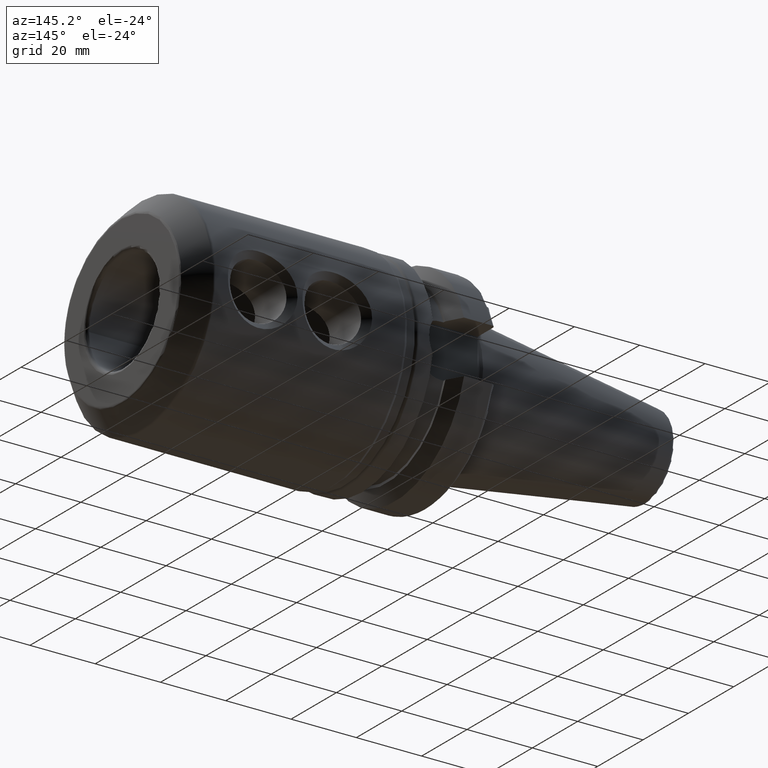
[diagram: clean part render]
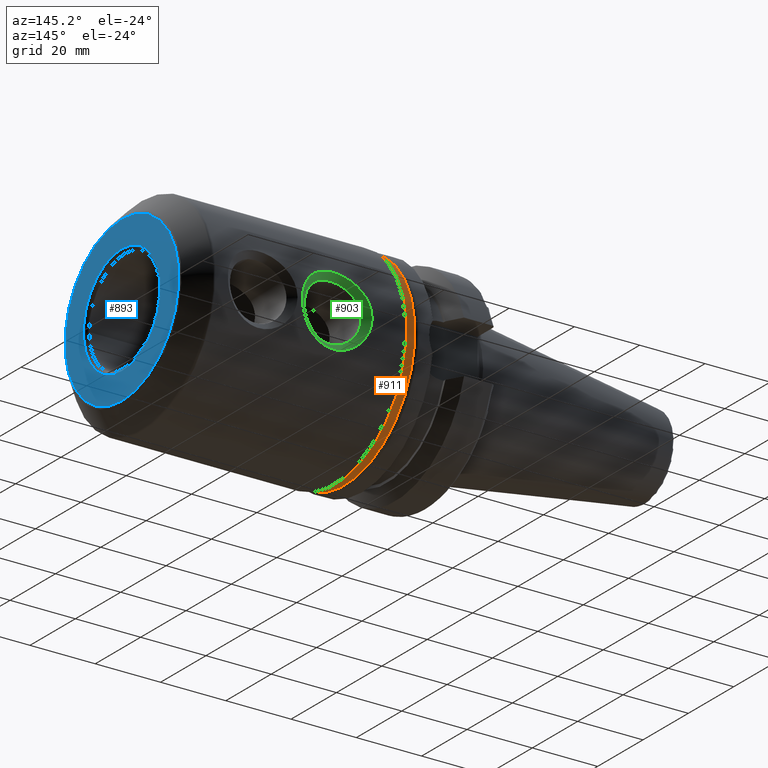
[diagram: same view with three faces highlighted in distinct colors, each labeled with its STEP entity id]
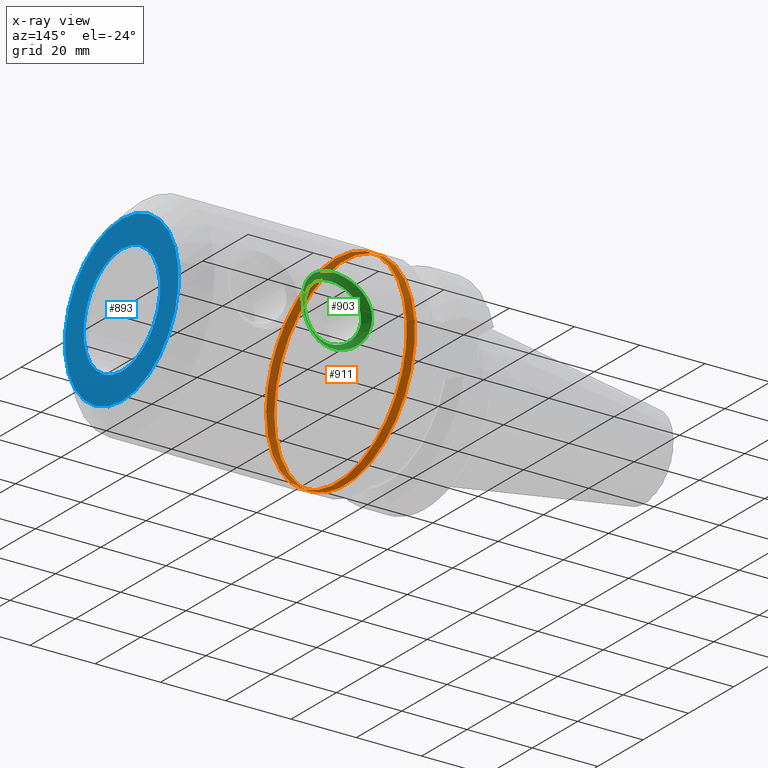
[diagram: x-ray of the same camera — body ghosted, the three highlighted faces saturated]
A machine part, auxiliary view with three faces highlighted in distinct colors.
The next image is the same camera in x-ray (body ghosted, the three faces saturated) — at least one of them is partly hidden behind the body in this view.
Their STEP definitions:

[orange] entity #911 — the highlighted cylindrical surface (bore or boss wall) has radius 31 mm, axis along (1, 0, 0).
#63=LINE('',#1933,#111);
#111=VECTOR('',#1192,31.);
#155=CYLINDRICAL_SURFACE('',#1016,31.);
#213=FACE_OUTER_BOUND('',#276,.T.);
#276=EDGE_LOOP('',(#697,#698,#699,#700,#701));
#333=CIRCLE('',#996,31.);
#341=CIRCLE('',#1011,31.);
#342=CIRCLE('',#1012,31.);
#398=VERTEX_POINT('',#1552);
#410=VERTEX_POINT('',#1922);
#411=VERTEX_POINT('',#1924);
#495=EDGE_CURVE('',#398,#398,#333,.T.);
#514=EDGE_CURVE('',#410,#411,#341,.T.);
#515=EDGE_CURVE('',#411,#410,#342,.T.);
#518=EDGE_CURVE('',#411,#398,#63,.T.);
#697=ORIENTED_EDGE('',*,*,#515,.F.);
#698=ORIENTED_EDGE('',*,*,#518,.T.);
#699=ORIENTED_EDGE('',*,*,#495,.F.);
#700=ORIENTED_EDGE('',*,*,#518,.F.);
#701=ORIENTED_EDGE('',*,*,#514,.F.);
#911=ADVANCED_FACE('',(#213),#155,.T.);
#996=AXIS2_PLACEMENT_3D('',#1554,#1143,#1144);
#1011=AXIS2_PLACEMENT_3D('',#1925,#1179,#1180);
#1012=AXIS2_PLACEMENT_3D('',#1926,#1181,#1182);
#1016=AXIS2_PLACEMENT_3D('',#1932,#1190,#1191);
#1143=DIRECTION('center_axis',(-1.,0.,0.));
#1144=DIRECTION('ref_axis',(0.,1.,0.));
#1179=DIRECTION('center_axis',(1.,0.,0.));
#1180=DIRECTION('ref_axis',(0.,0.,-1.));
#1181=DIRECTION('center_axis',(1.,0.,0.));
#1182=DIRECTION('ref_axis',(0.,0.,-1.));
#1190=DIRECTION('center_axis',(1.,0.,0.));
#1191=DIRECTION('ref_axis',(0.,1.,0.));
#1192=DIRECTION('',(-1.,0.,0.));
#1552=CARTESIAN_POINT('',(27.,-31.,6.2751677334357E-15));
#1554=CARTESIAN_POINT('Origin',(27.,0.,0.));
#1922=CARTESIAN_POINT('',(29.5,-3.79640507735679E-15,31.));
#1924=CARTESIAN_POINT('',(29.5,-31.,-3.79640507735679E-15));
#1925=CARTESIAN_POINT('Origin',(29.5,0.,0.));
#1926=CARTESIAN_POINT('Origin',(29.5,0.,0.));
#1932=CARTESIAN_POINT('Origin',(28.25,0.,0.));
#1933=CARTESIAN_POINT('',(28.25,-31.,-3.79640507735679E-15));

[blue] entity #893 — the highlighted planar face has unit normal (1, 0, 0).
#166=FACE_BOUND('',#251,.T.);
#177=PLANE('',#975);
#195=FACE_OUTER_BOUND('',#250,.T.);
#250=EDGE_LOOP('',(#611));
#251=EDGE_LOOP('',(#612));
#318=CIRCLE('',#974,16.875);
#319=CIRCLE('',#976,25.0857864376269);
#380=VERTEX_POINT('',#1374);
#381=VERTEX_POINT('',#1378);
#471=EDGE_CURVE('',#380,#380,#318,.T.);
#472=EDGE_CURVE('',#381,#381,#319,.T.);
#611=ORIENTED_EDGE('',*,*,#472,.F.);
#612=ORIENTED_EDGE('',*,*,#471,.F.);
#893=ADVANCED_FACE('',(#195,#166),#177,.T.);
#974=AXIS2_PLACEMENT_3D('',#1376,#1096,#1097);
#975=AXIS2_PLACEMENT_3D('',#1377,#1098,#1099);
#976=AXIS2_PLACEMENT_3D('',#1379,#1100,#1101);
#1096=DIRECTION('center_axis',(1.,0.,0.));
#1097=DIRECTION('ref_axis',(0.,-1.,1.83697019872103E-16));
#1098=DIRECTION('center_axis',(1.,0.,0.));
#1099=DIRECTION('ref_axis',(0.,0.,-1.));
#1100=DIRECTION('center_axis',(-1.,0.,0.));
#1101=DIRECTION('ref_axis',(0.,-1.,1.83697019872103E-16));
#1374=CARTESIAN_POINT('',(95.25,-2.06659147356116E-15,16.875));
#1376=CARTESIAN_POINT('Origin',(95.25,0.,0.));
#1377=CARTESIAN_POINT('Origin',(95.25,15.875,0.));
#1378=CARTESIAN_POINT('',(95.25,-3.07212280649339E-15,25.0857864376269));
#1379=CARTESIAN_POINT('Origin',(95.25,0.,0.));

[green] entity #903 — the highlighted face is a freeform B-spline surface patch.
#20=B_SPLINE_SURFACE_WITH_KNOTS('',3,3,((#1730,#1731,#1732,#1733,#1734,
#1735,#1736,#1737,#1738,#1739,#1740,#1741,#1742,#1743,#1744,#1745,#1746,
#1747,#1748,#1749,#1750,#1751,#1752,#1753,#1754,#1755,#1756,#1757,#1758,
#1759,#1760,#1761,#1762,#1763,#1764),(#1765,#1766,#1767,#1768,#1769,#1770,
#1771,#1772,#1773,#1774,#1775,#1776,#1777,#1778,#1779,#1780,#1781,#1782,
#1783,#1784,#1785,#1786,#1787,#1788,#1789,#1790,#1791,#1792,#1793,#1794,
#1795,#1796,#1797,#1798,#1799),(#1800,#1801,#1802,#1803,#1804,#1805,#1806,
#1807,#1808,#1809,#1810,#1811,#1812,#1813,#1814,#1815,#1816,#1817,#1818,
#1819,#1820,#1821,#1822,#1823,#1824,#1825,#1826,#1827,#1828,#1829,#1830,
#1831,#1832,#1833,#1834),(#1835,#1836,#1837,#1838,#1839,#1840,#1841,#1842,
#1843,#1844,#1845,#1846,#1847,#1848,#1849,#1850,#1851,#1852,#1853,#1854,
#1855,#1856,#1857,#1858,#1859,#1860,#1861,#1862,#1863,#1864,#1865,#1866,
#1867,#1868,#1869)),.UNSPECIFIED.,.F.,.T.,.F.,(4,4),(4,1,1,1,1,1,1,1,1,
1,1,1,1,1,1,1,1,1,1,1,1,1,1,1,1,1,1,1,1,1,1,1,4),(0.,1.),(3.93676515653178,
4.12423016398568,4.31169517143957,4.49916017889347,4.68662518634736,4.87409019380126,
5.06155520125515,5.43648521616294,5.59270605570785,5.6864385594348,5.81141523107073,
5.93639190270666,6.06136857434259,6.18634524597852,6.37381025343241,6.43629858925038,
6.68625193252224,6.9362052757941,7.06118194743003,7.18615861906595,7.21740278697494,
7.31113529070188,7.43611196233781,7.68606530560967,7.8110419772456,7.93601864888153,
8.18597199215339,8.27970449588034,8.43592533542525,8.62339034287914,8.81085535033304,
8.90458785405999,9.18578536524083),.UNSPECIFIED.);
#35=B_SPLINE_CURVE_WITH_KNOTS('',3,(#1514,#1515,#1516,#1517,#1518,#1519,
#1520,#1521,#1522,#1523,#1524,#1525,#1526,#1527,#1528,#1529,#1530,#1531,
#1532,#1533,#1534,#1535,#1536,#1537,#1538,#1539,#1540,#1541,#1542,#1543,
#1544,#1545,#1546,#1547,#1548),.UNSPECIFIED.,.T.,.F.,(4,1,1,1,1,1,1,1,1,
1,1,1,1,1,1,1,1,1,1,1,1,1,1,1,1,1,1,1,1,1,1,1,4),(-9.18578536524083,-8.90458785405999,
-8.81085535033304,-8.62339034287914,-8.43592533542525,-8.27970449588034,
-8.18597199215339,-7.93601864888153,-7.8110419772456,-7.68606530560967,
-7.43611196233781,-7.31113529070188,-7.21740278697494,-7.18615861906595,
-7.06118194743003,-6.9362052757941,-6.68625193252224,-6.43629858925038,
-6.37381025343241,-6.18634524597852,-6.06136857434259,-5.93639190270666,
-5.81141523107073,-5.6864385594348,-5.59270605570785,-5.43648521616294,
-5.06155520125515,-4.87409019380126,-4.68662518634736,-4.49916017889347,
-4.31169517143957,-4.12423016398568,-3.93676515653178),.UNSPECIFIED.);
#40=B_SPLINE_CURVE_WITH_KNOTS('',3,(#1872,#1873,#1874,#1875,#1876,#1877,
#1878,#1879,#1880,#1881,#1882,#1883,#1884,#1885,#1886,#1887,#1888,#1889,
#1890,#1891,#1892,#1893,#1894,#1895,#1896,#1897,#1898,#1899,#1900,#1901,
#1902,#1903,#1904,#1905,#1906),.UNSPECIFIED.,.T.,.F.,(4,1,1,1,1,1,1,1,1,
1,1,1,1,1,1,1,1,1,1,1,1,1,1,1,1,1,1,1,1,1,1,1,4),(3.93676515653178,4.12423016398568,
4.31169517143957,4.49916017889347,4.68662518634736,4.87409019380126,5.06155520125515,
5.43648521616294,5.59270605570785,5.6864385594348,5.81141523107073,5.93639190270666,
6.06136857434259,6.18634524597852,6.37381025343241,6.43629858925038,6.68625193252224,
6.9362052757941,7.06118194743003,7.18615861906595,7.21740278697494,7.31113529070188,
7.43611196233781,7.68606530560967,7.8110419772456,7.93601864888153,8.18597199215339,
8.27970449588034,8.43592533542525,8.62339034287914,8.81085535033304,8.90458785405999,
9.18578536524083),.UNSPECIFIED.);
#59=LINE('',#1871,#107);
#107=VECTOR('',#1156,10.);
#205=FACE_OUTER_BOUND('',#265,.T.);
#265=EDGE_LOOP('',(#668,#669,#670,#671));
#396=VERTEX_POINT('',#1513);
#405=VERTEX_POINT('',#1870);
#492=EDGE_CURVE('',#396,#396,#35,.T.);
#505=EDGE_CURVE('',#396,#405,#59,.T.);
#506=EDGE_CURVE('',#405,#405,#40,.T.);
#668=ORIENTED_EDGE('',*,*,#505,.T.);
#669=ORIENTED_EDGE('',*,*,#506,.T.);
#670=ORIENTED_EDGE('',*,*,#505,.F.);
#671=ORIENTED_EDGE('',*,*,#492,.T.);
#903=ADVANCED_FACE('',(#205),#20,.T.);
#1156=DIRECTION('',(-0.707106781186547,-0.707106781186547,0.));
#1513=CARTESIAN_POINT('',(61.9514,31.75,-9.15933995315754E-15));
#1514=CARTESIAN_POINT('Ctrl Pts',(61.9514,31.75,-9.15933995315754E-15));
#1515=CARTESIAN_POINT('Ctrl Pts',(61.9514,31.75,-1.15376234238642));
#1516=CARTESIAN_POINT('Ctrl Pts',(61.6865533587193,31.6587744954195,-2.77709136030224));
#1517=CARTESIAN_POINT('Ctrl Pts',(60.7544738931549,31.3660640901303,-5.01718380434163));
#1518=CARTESIAN_POINT('Ctrl Pts',(59.6595309413877,31.0498665515236,-6.71733268069511));
#1519=CARTESIAN_POINT('Ctrl Pts',(58.1464510672553,30.6782646627546,-8.2149028096495));
#1520=CARTESIAN_POINT('Ctrl Pts',(56.5747576083908,30.3774507675469,-9.24653187692703));
#1521=CARTESIAN_POINT('Ctrl Pts',(54.6078191580216,30.0921987603586,-10.1371329506327));
#1522=CARTESIAN_POINT('Ctrl Pts',(52.579383802733,29.9344259023843,-10.5813641759284));
#1523=CARTESIAN_POINT('Ctrl Pts',(50.5179175934144,29.9367141850976,-10.5764519938658));
#1524=CARTESIAN_POINT('Ctrl Pts',(48.3802057180418,30.0429112398897,-10.273575199632));
#1525=CARTESIAN_POINT('Ctrl Pts',(46.3263822170351,30.3119417814308,-9.47777759877953));
#1526=CARTESIAN_POINT('Ctrl Pts',(44.6762413444663,30.6354797957952,-8.35480376393735));
#1527=CARTESIAN_POINT('Ctrl Pts',(43.9120569117334,30.8102431157176,-7.67471557160065));
#1528=CARTESIAN_POINT('Ctrl Pts',(43.2090516292059,30.9823320769769,-6.9537972087809));
#1529=CARTESIAN_POINT('Ctrl Pts',(42.4682671539765,31.1792284810548,-6.03724335979101));
#1530=CARTESIAN_POINT('Ctrl Pts',(41.3808342874773,31.5000432358129,-4.19910427604413));
#1531=CARTESIAN_POINT('Ctrl Pts',(40.5828788553332,31.7651030436324,-1.54896069154626));
#1532=CARTESIAN_POINT('Ctrl Pts',(40.589662908443,31.7626692163576,0.771414389667909));
#1533=CARTESIAN_POINT('Ctrl Pts',(40.9788474418539,31.6336656150502,2.88053128167309));
#1534=CARTESIAN_POINT('Ctrl Pts',(41.5196199690292,31.4588606303231,4.42023745067309));
#1535=CARTESIAN_POINT('Ctrl Pts',(42.4694416306182,31.1789624854503,6.04292758212382));
#1536=CARTESIAN_POINT('Ctrl Pts',(43.4520590768934,30.9179134636307,7.2506488311284));
#1537=CARTESIAN_POINT('Ctrl Pts',(44.56264289723,30.6578685381819,8.27550597405263));
#1538=CARTESIAN_POINT('Ctrl Pts',(45.7796049499671,30.4196216760796,9.1038591498995));
#1539=CARTESIAN_POINT('Ctrl Pts',(47.2210500960213,30.1939115263953,9.82709839382084));
#1540=CARTESIAN_POINT('Ctrl Pts',(49.8375902032592,29.9093521222392,10.6600445191268));
#1541=CARTESIAN_POINT('Ctrl Pts',(52.8801628399556,29.9100577038459,10.6584077806845));
#1542=CARTESIAN_POINT('Ctrl Pts',(56.0061288298443,30.2704199286968,9.60288519368882));
#1543=CARTESIAN_POINT('Ctrl Pts',(58.0506842192675,30.6562948339605,8.30428152864141));
#1544=CARTESIAN_POINT('Ctrl Pts',(59.6624209023439,31.0499581472802,6.71595062602754));
#1545=CARTESIAN_POINT('Ctrl Pts',(60.9733259129663,31.4300532248479,4.67855368436668));
#1546=CARTESIAN_POINT('Ctrl Pts',(61.7786301881373,31.6916072204807,2.36653202827654));
#1547=CARTESIAN_POINT('Ctrl Pts',(61.9514,31.75,0.769174894924102));
#1548=CARTESIAN_POINT('Ctrl Pts',(61.9514,31.75,-6.66133814775094E-15));
#1730=CARTESIAN_POINT('Ctrl Pts',(61.9514,31.75,-6.66133814775094E-15));
#1731=CARTESIAN_POINT('Ctrl Pts',(61.9514,31.75,0.769174894924102));
#1732=CARTESIAN_POINT('Ctrl Pts',(61.7786301881373,31.6916072204807,2.36653202827654));
#1733=CARTESIAN_POINT('Ctrl Pts',(60.9733259129663,31.4300532248479,4.67855368436668));
#1734=CARTESIAN_POINT('Ctrl Pts',(59.6624209023439,31.0499581472802,6.71595062602754));
#1735=CARTESIAN_POINT('Ctrl Pts',(58.0506842192675,30.6562948339605,8.30428152864141));
#1736=CARTESIAN_POINT('Ctrl Pts',(56.0061288298443,30.2704199286968,9.60288519368882));
#1737=CARTESIAN_POINT('Ctrl Pts',(52.8801628399556,29.9100577038459,10.6584077806845));
#1738=CARTESIAN_POINT('Ctrl Pts',(49.8375902032592,29.9093521222392,10.6600445191268));
#1739=CARTESIAN_POINT('Ctrl Pts',(47.2210500960213,30.1939115263953,9.82709839382084));
#1740=CARTESIAN_POINT('Ctrl Pts',(45.7796049499671,30.4196216760796,9.1038591498995));
#1741=CARTESIAN_POINT('Ctrl Pts',(44.56264289723,30.6578685381819,8.27550597405263));
#1742=CARTESIAN_POINT('Ctrl Pts',(43.4520590768934,30.9179134636307,7.2506488311284));
#1743=CARTESIAN_POINT('Ctrl Pts',(42.4694416306182,31.1789624854503,6.04292758212382));
#1744=CARTESIAN_POINT('Ctrl Pts',(41.5196199690292,31.4588606303231,4.42023745067309));
#1745=CARTESIAN_POINT('Ctrl Pts',(40.9788474418539,31.6336656150502,2.88053128167309));
#1746=CARTESIAN_POINT('Ctrl Pts',(40.589662908443,31.7626692163576,0.771414389667909));
#1747=CARTESIAN_POINT('Ctrl Pts',(40.5828788553332,31.7651030436324,-1.54896069154626));
#1748=CARTESIAN_POINT('Ctrl Pts',(41.3808342874773,31.5000432358129,-4.19910427604413));
#1749=CARTESIAN_POINT('Ctrl Pts',(42.4682671539765,31.1792284810548,-6.03724335979101));
#1750=CARTESIAN_POINT('Ctrl Pts',(43.2090516292059,30.9823320769769,-6.9537972087809));
#1751=CARTESIAN_POINT('Ctrl Pts',(43.9120569117334,30.8102431157176,-7.67471557160065));
#1752=CARTESIAN_POINT('Ctrl Pts',(44.6762413444663,30.6354797957952,-8.35480376393735));
#1753=CARTESIAN_POINT('Ctrl Pts',(46.3263822170351,30.3119417814308,-9.47777759877953));
#1754=CARTESIAN_POINT('Ctrl Pts',(48.3802057180418,30.0429112398897,-10.273575199632));
#1755=CARTESIAN_POINT('Ctrl Pts',(50.5179175934144,29.9367141850976,-10.5764519938658));
#1756=CARTESIAN_POINT('Ctrl Pts',(52.579383802733,29.9344259023843,-10.5813641759284));
#1757=CARTESIAN_POINT('Ctrl Pts',(54.6078191580216,30.0921987603586,-10.1371329506327));
#1758=CARTESIAN_POINT('Ctrl Pts',(56.5747576083908,30.3774507675469,-9.24653187692703));
#1759=CARTESIAN_POINT('Ctrl Pts',(58.1464510672553,30.6782646627546,-8.2149028096495));
#1760=CARTESIAN_POINT('Ctrl Pts',(59.6595309413877,31.0498665515236,-6.71733268069511));
#1761=CARTESIAN_POINT('Ctrl Pts',(60.7544738931549,31.3660640901303,-5.01718380434163));
#1762=CARTESIAN_POINT('Ctrl Pts',(61.6865533587193,31.6587744954195,-2.77709136030224));
#1763=CARTESIAN_POINT('Ctrl Pts',(61.9514,31.75,-1.15376234238642));
#1764=CARTESIAN_POINT('Ctrl Pts',(61.9514,31.75,-9.15933995315754E-15));
#1765=CARTESIAN_POINT('Ctrl Pts',(61.2847333333333,31.0833333333334,-6.66133814775094E-15));
#1766=CARTESIAN_POINT('Ctrl Pts',(61.2847333333333,31.0833333333334,0.707956805601317));
#1767=CARTESIAN_POINT('Ctrl Pts',(61.1286183994204,31.0324103178117,2.17818997039827));
#1768=CARTESIAN_POINT('Ctrl Pts',(60.3972955375651,30.8034282247254,4.32030900787373));
#1769=CARTESIAN_POINT('Ctrl Pts',(59.1932866510946,30.4680881226795,6.23128389281448));
#1770=CARTESIAN_POINT('Ctrl Pts',(57.6954385597241,30.1180894286852,7.74131980971422));
#1771=CARTESIAN_POINT('Ctrl Pts',(55.7743548705841,29.7727571298236,8.99155655953024));
#1772=CARTESIAN_POINT('Ctrl Pts',(52.8091957406657,29.4484049638671,10.020369616386));
#1773=CARTESIAN_POINT('Ctrl Pts',(49.9023628320781,29.4477474268973,10.0220484222364));
#1774=CARTESIAN_POINT('Ctrl Pts',(47.4194339438285,29.7039022609694,9.21006644776938));
#1775=CARTESIAN_POINT('Ctrl Pts',(46.0591263853886,29.9063077929079,8.51089555688756));
#1776=CARTESIAN_POINT('Ctrl Pts',(44.9174065911271,30.1192879662774,7.71533364109246));
#1777=CARTESIAN_POINT('Ctrl Pts',(43.8831389183338,30.3507207499083,6.7394569248381));
#1778=CARTESIAN_POINT('Ctrl Pts',(42.9748342494356,30.5819618652095,5.59942861739675));
#1779=CARTESIAN_POINT('Ctrl Pts',(42.1038235571587,30.8286145068501,4.08103348489015));
#1780=CARTESIAN_POINT('Ctrl Pts',(41.6124512205051,30.981707371605,2.65438049448189));
#1781=CARTESIAN_POINT('Ctrl Pts',(41.2599378003214,31.0944094103178,0.70891154647398));
#1782=CARTESIAN_POINT('Ctrl Pts',(41.2537721077801,31.0965661568694,-1.42332311170692));
#1783=CARTESIAN_POINT('Ctrl Pts',(41.9765965017051,30.8649119213597,-3.87378223920673));
#1784=CARTESIAN_POINT('Ctrl Pts',(42.9737394710443,30.5821958545397,-5.59419495634245));
#1785=CARTESIAN_POINT('Ctrl Pts',(43.6584912897025,30.4077860926112,-6.45920403551036));
#1786=CARTESIAN_POINT('Ctrl Pts',(44.3115300491929,30.2548961072202,-7.14327757831937));
#1787=CARTESIAN_POINT('Ctrl Pts',(45.0239654033891,30.0992788507306,-7.79140545774736));
#1788=CARTESIAN_POINT('Ctrl Pts',(46.5719456808218,29.8100598872575,-8.87000914208949));
#1789=CARTESIAN_POINT('Ctrl Pts',(48.5179149424437,29.5680469691933,-9.64484251908769));
#1790=CARTESIAN_POINT('Ctrl Pts',(50.553933096379,29.4723317268399,-9.94089894221459));
#1791=CARTESIAN_POINT('Ctrl Pts',(52.5193635502617,29.4702544761242,-9.94584086310391));
#1792=CARTESIAN_POINT('Ctrl Pts',(54.4497859574434,29.6125075198764,-9.51111606178403));
#1793=CARTESIAN_POINT('Ctrl Pts',(56.3088114509961,29.8685744208216,-8.64820069054823));
#1794=CARTESIAN_POINT('Ctrl Pts',(57.7845871728327,30.1376289083904,-7.65637051297537));
#1795=CARTESIAN_POINT('Ctrl Pts',(59.1905239519397,30.4680005651197,-6.23255554696147));
#1796=CARTESIAN_POINT('Ctrl Pts',(60.1964011383733,30.7469900616628,-4.63803773935098));
#1797=CARTESIAN_POINT('Ctrl Pts',(61.045914204336,31.0038545336007,-2.55647874014164));
#1798=CARTESIAN_POINT('Ctrl Pts',(61.2847333333333,31.0833333333334,-1.06193520840214));
#1799=CARTESIAN_POINT('Ctrl Pts',(61.2847333333333,31.0833333333334,-8.78926561161582E-15));
#1800=CARTESIAN_POINT('Ctrl Pts',(60.6180666666667,30.4166666666667,-6.66133814775094E-15));
#1801=CARTESIAN_POINT('Ctrl Pts',(60.6180666666667,30.4166666666667,0.646738716278533));
#1802=CARTESIAN_POINT('Ctrl Pts',(60.4786066107035,30.3732134151428,1.98984791252));
#1803=CARTESIAN_POINT('Ctrl Pts',(59.821265162164,30.1768032246029,3.96206433138079));
#1804=CARTESIAN_POINT('Ctrl Pts',(58.7241523998452,29.8862180980787,5.74661715960142));
#1805=CARTESIAN_POINT('Ctrl Pts',(57.3401929001807,29.5798840234098,7.17835809078703));
#1806=CARTESIAN_POINT('Ctrl Pts',(55.5425809113238,29.2750943309503,8.38022792537165));
#1807=CARTESIAN_POINT('Ctrl Pts',(52.7382286413758,28.9867522238884,9.38233145208749));
#1808=CARTESIAN_POINT('Ctrl Pts',(49.9671354608971,28.9861427315554,9.38405232534599));
#1809=CARTESIAN_POINT('Ctrl Pts',(47.6178177916356,29.2138929955435,8.59303450171792));
#1810=CARTESIAN_POINT('Ctrl Pts',(46.33864782081,29.3929939097361,7.91793196387562));
#1811=CARTESIAN_POINT('Ctrl Pts',(45.2721702850242,29.5807073943729,7.15516130813229));
#1812=CARTESIAN_POINT('Ctrl Pts',(44.3142187597743,29.7835280361858,6.22826501854781));
#1813=CARTESIAN_POINT('Ctrl Pts',(43.4802268682531,29.9849612449687,5.15592965266968));
#1814=CARTESIAN_POINT('Ctrl Pts',(42.6880271452881,30.1983683833771,3.74182951910721));
#1815=CARTESIAN_POINT('Ctrl Pts',(42.2460549991564,30.3297491281598,2.42822970729069));
#1816=CARTESIAN_POINT('Ctrl Pts',(41.9302126921999,30.426149604278,0.646408703280048));
#1817=CARTESIAN_POINT('Ctrl Pts',(41.9246653602269,30.4280292701064,-1.29768553186758));
#1818=CARTESIAN_POINT('Ctrl Pts',(42.5723587159329,30.2297806069065,-3.54846020236933));
#1819=CARTESIAN_POINT('Ctrl Pts',(43.4792117881122,29.9851632280247,-5.15114655289389));
#1820=CARTESIAN_POINT('Ctrl Pts',(44.1079309501992,29.8332401082455,-5.96461086223982));
#1821=CARTESIAN_POINT('Ctrl Pts',(44.7110031866525,29.6995490987229,-6.6118395850381));
#1822=CARTESIAN_POINT('Ctrl Pts',(45.3716894623119,29.563077905666,-7.22800715155737));
#1823=CARTESIAN_POINT('Ctrl Pts',(46.8175091446086,29.3081779930842,-8.26224068539945));
#1824=CARTESIAN_POINT('Ctrl Pts',(48.6556241668455,29.0931826984968,-9.0161098385434));
#1825=CARTESIAN_POINT('Ctrl Pts',(50.5899485993436,29.0079492685822,-9.30534589056334));
#1826=CARTESIAN_POINT('Ctrl Pts',(52.4593432977905,29.0060830498641,-9.31031755027941));
#1827=CARTESIAN_POINT('Ctrl Pts',(54.2917527568652,29.1328162793942,-8.88509917293532));
#1828=CARTESIAN_POINT('Ctrl Pts',(56.0428652936014,29.3596980740962,-8.04986950416943));
#1829=CARTESIAN_POINT('Ctrl Pts',(57.4227232784101,29.5969931540261,-7.09783821630123));
#1830=CARTESIAN_POINT('Ctrl Pts',(58.7215169624917,29.8861345787158,-5.74777841322784));
#1831=CARTESIAN_POINT('Ctrl Pts',(59.6383283835917,30.1279160331953,-4.25889167436034));
#1832=CARTESIAN_POINT('Ctrl Pts',(60.4052750499526,30.3489345717819,-2.33586611998103));
#1833=CARTESIAN_POINT('Ctrl Pts',(60.6180666666667,30.4166666666667,-0.970108074417859));
#1834=CARTESIAN_POINT('Ctrl Pts',(60.6180666666667,30.4166666666667,-8.4191912700741E-15));
#1835=CARTESIAN_POINT('Ctrl Pts',(59.9514,29.75,-6.66133814775094E-15));
#1836=CARTESIAN_POINT('Ctrl Pts',(59.9514,29.75,0.585520626955749));
#1837=CARTESIAN_POINT('Ctrl Pts',(59.8285948219867,29.7140165124738,1.80150585464173));
#1838=CARTESIAN_POINT('Ctrl Pts',(59.2452347867629,29.5501782244804,3.60381965488783));
#1839=CARTESIAN_POINT('Ctrl Pts',(58.2550181485959,29.304348073478,5.26195042638836));
#1840=CARTESIAN_POINT('Ctrl Pts',(56.9849472406373,29.0416786181344,6.61539637185983));
#1841=CARTESIAN_POINT('Ctrl Pts',(55.3108069520635,28.7774315320771,7.76889929121306));
#1842=CARTESIAN_POINT('Ctrl Pts',(52.6672615420859,28.5250994839096,8.744293287789));
#1843=CARTESIAN_POINT('Ctrl Pts',(50.0319080897161,28.5245380362135,8.74605622845555));
#1844=CARTESIAN_POINT('Ctrl Pts',(47.8162016394427,28.7238837301176,7.97600255566646));
#1845=CARTESIAN_POINT('Ctrl Pts',(46.6181692562315,28.8796800265644,7.32496837086368));
#1846=CARTESIAN_POINT('Ctrl Pts',(45.6269339789213,29.0421268224684,6.59498897517211));
#1847=CARTESIAN_POINT('Ctrl Pts',(44.7452986012147,29.2163353224634,5.71707311225751));
#1848=CARTESIAN_POINT('Ctrl Pts',(43.9856194870705,29.3879606247279,4.7124306879426));
#1849=CARTESIAN_POINT('Ctrl Pts',(43.2722307334176,29.5681222599041,3.40262555332426));
#1850=CARTESIAN_POINT('Ctrl Pts',(42.8796587778077,29.6777908847145,2.2020789200995));
#1851=CARTESIAN_POINT('Ctrl Pts',(42.6004875840784,29.7578897982381,0.583905860086117));
#1852=CARTESIAN_POINT('Ctrl Pts',(42.5955586126738,29.7594923833435,-1.17204795202824));
#1853=CARTESIAN_POINT('Ctrl Pts',(43.1681209301606,29.5946492924533,-3.22313816553193));
#1854=CARTESIAN_POINT('Ctrl Pts',(43.9846841051799,29.3881306015096,-4.70809814944533));
#1855=CARTESIAN_POINT('Ctrl Pts',(44.5573706106958,29.2586941238797,-5.47001768896928));
#1856=CARTESIAN_POINT('Ctrl Pts',(45.110476324112,29.1442020902256,-6.08040159175682));
#1857=CARTESIAN_POINT('Ctrl Pts',(45.7194135212347,29.0268769606014,-6.66460884536738));
#1858=CARTESIAN_POINT('Ctrl Pts',(47.0630726083952,28.806296098911,-7.65447222870941));
#1859=CARTESIAN_POINT('Ctrl Pts',(48.7933333912473,28.6183184278004,-8.38737715799911));
#1860=CARTESIAN_POINT('Ctrl Pts',(50.6259641023081,28.5435668103245,-8.66979283891209));
#1861=CARTESIAN_POINT('Ctrl Pts',(52.3993230453192,28.541911623604,-8.6747942374549));
#1862=CARTESIAN_POINT('Ctrl Pts',(54.133719556287,28.653125038912,-8.25908228408661));
#1863=CARTESIAN_POINT('Ctrl Pts',(55.7769191362066,28.8508217273708,-7.45153831779063));
#1864=CARTESIAN_POINT('Ctrl Pts',(57.0608593839875,29.0563573996619,-6.5393059196271));
#1865=CARTESIAN_POINT('Ctrl Pts',(58.2525099730437,29.3042685923119,-5.26300127949421));
#1866=CARTESIAN_POINT('Ctrl Pts',(59.0802556288102,29.5088420047278,-3.87974560936969));
#1867=CARTESIAN_POINT('Ctrl Pts',(59.7646358955692,29.694014609963,-2.11525349982043));
#1868=CARTESIAN_POINT('Ctrl Pts',(59.9514,29.75,-0.87828094043358));
#1869=CARTESIAN_POINT('Ctrl Pts',(59.9514,29.75,-8.04911692853238E-15));
#1870=CARTESIAN_POINT('',(59.9514,29.75,-6.66133814775094E-15));
#1871=CARTESIAN_POINT('',(61.9514,31.75,-6.66133814775094E-15));
#1872=CARTESIAN_POINT('Ctrl Pts',(59.9514,29.75,-6.66133814775094E-15));
#1873=CARTESIAN_POINT('Ctrl Pts',(59.9514,29.75,0.585520626955749));
#1874=CARTESIAN_POINT('Ctrl Pts',(59.8285948219867,29.7140165124738,1.80150585464173));
#1875=CARTESIAN_POINT('Ctrl Pts',(59.2452347867629,29.5501782244804,3.60381965488783));
#1876=CARTESIAN_POINT('Ctrl Pts',(58.2550181485959,29.304348073478,5.26195042638836));
#1877=CARTESIAN_POINT('Ctrl Pts',(56.9849472406373,29.0416786181344,6.61539637185983));
#1878=CARTESIAN_POINT('Ctrl Pts',(55.3108069520635,28.7774315320771,7.76889929121306));
#1879=CARTESIAN_POINT('Ctrl Pts',(52.6672615420859,28.5250994839096,8.744293287789));
#1880=CARTESIAN_POINT('Ctrl Pts',(50.0319080897161,28.5245380362135,8.74605622845555));
#1881=CARTESIAN_POINT('Ctrl Pts',(47.8162016394427,28.7238837301176,7.97600255566646));
#1882=CARTESIAN_POINT('Ctrl Pts',(46.6181692562315,28.8796800265644,7.32496837086368));
#1883=CARTESIAN_POINT('Ctrl Pts',(45.6269339789213,29.0421268224684,6.59498897517211));
#1884=CARTESIAN_POINT('Ctrl Pts',(44.7452986012147,29.2163353224634,5.71707311225751));
#1885=CARTESIAN_POINT('Ctrl Pts',(43.9856194870705,29.3879606247279,4.7124306879426));
#1886=CARTESIAN_POINT('Ctrl Pts',(43.2722307334176,29.5681222599041,3.40262555332426));
#1887=CARTESIAN_POINT('Ctrl Pts',(42.8796587778077,29.6777908847145,2.2020789200995));
#1888=CARTESIAN_POINT('Ctrl Pts',(42.6004875840784,29.7578897982381,0.583905860086117));
#1889=CARTESIAN_POINT('Ctrl Pts',(42.5955586126738,29.7594923833435,-1.17204795202824));
#1890=CARTESIAN_POINT('Ctrl Pts',(43.1681209301606,29.5946492924533,-3.22313816553193));
#1891=CARTESIAN_POINT('Ctrl Pts',(43.9846841051799,29.3881306015096,-4.70809814944533));
#1892=CARTESIAN_POINT('Ctrl Pts',(44.5573706106958,29.2586941238797,-5.47001768896928));
#1893=CARTESIAN_POINT('Ctrl Pts',(45.110476324112,29.1442020902256,-6.08040159175682));
#1894=CARTESIAN_POINT('Ctrl Pts',(45.7194135212347,29.0268769606014,-6.66460884536738));
#1895=CARTESIAN_POINT('Ctrl Pts',(47.0630726083952,28.806296098911,-7.65447222870941));
#1896=CARTESIAN_POINT('Ctrl Pts',(48.7933333912473,28.6183184278004,-8.38737715799911));
#1897=CARTESIAN_POINT('Ctrl Pts',(50.6259641023081,28.5435668103245,-8.66979283891209));
#1898=CARTESIAN_POINT('Ctrl Pts',(52.3993230453192,28.541911623604,-8.6747942374549));
#1899=CARTESIAN_POINT('Ctrl Pts',(54.133719556287,28.653125038912,-8.25908228408661));
#1900=CARTESIAN_POINT('Ctrl Pts',(55.7769191362066,28.8508217273708,-7.45153831779063));
#1901=CARTESIAN_POINT('Ctrl Pts',(57.0608593839875,29.0563573996619,-6.5393059196271));
#1902=CARTESIAN_POINT('Ctrl Pts',(58.2525099730437,29.3042685923119,-5.26300127949421));
#1903=CARTESIAN_POINT('Ctrl Pts',(59.0802556288102,29.5088420047278,-3.87974560936969));
#1904=CARTESIAN_POINT('Ctrl Pts',(59.7646358955692,29.694014609963,-2.11525349982043));
#1905=CARTESIAN_POINT('Ctrl Pts',(59.9514,29.75,-0.87828094043358));
#1906=CARTESIAN_POINT('Ctrl Pts',(59.9514,29.75,-8.04911692853238E-15));